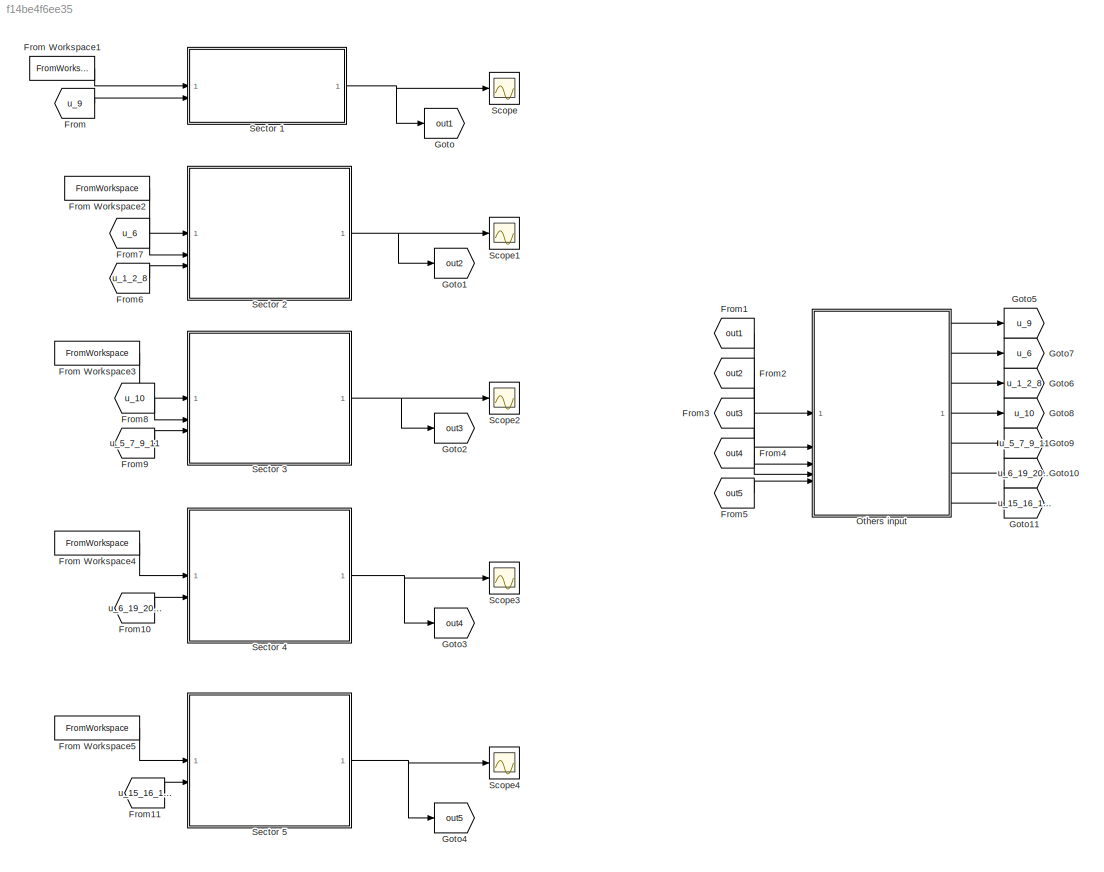
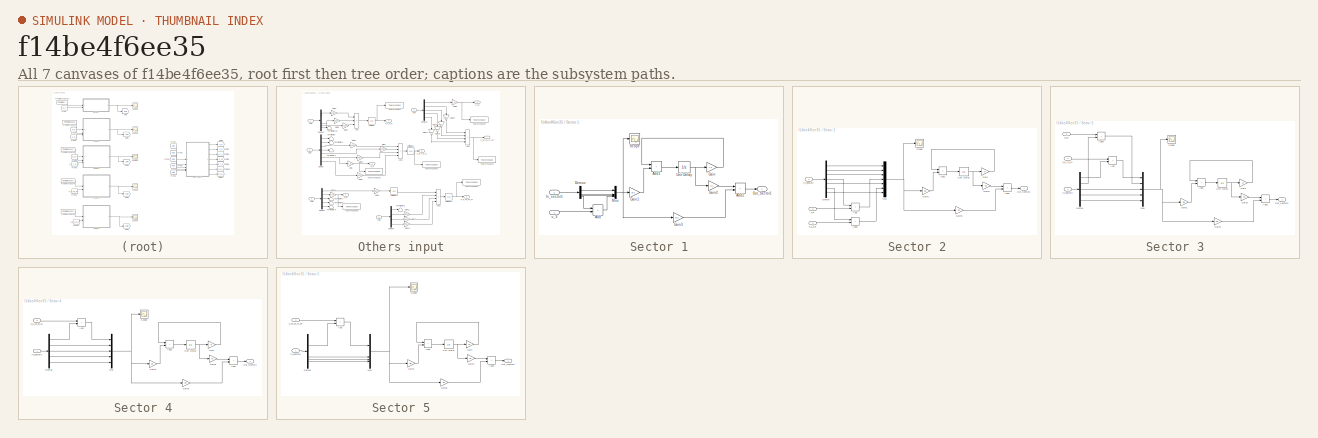
[diagram: thumbnail index - all 7 canvases of the model, root first then tree order]
MODEL slx_f14be4f6ee35
KIND model
CONFIG AbsTol = auto
CONFIG EnableMultiTasking = off
CONFIG FixedStep = auto
CONFIG MaxStep = auto
CONFIG MinStep = auto
CONFIG RelTol = 1e-3
CONFIG SampleTimeConstraint = Unconstrained
CONFIG SolverName = VariableStepAuto
CONFIG StartTime = 0.0
CONFIG StopTime = tfinal
BLOCK [From] From
  GotoTag = u_9
BLOCK [FromWorkspace] From Workspace1
  OutputAfterFinalValue = Holding final value
  SampleTime = 1
  VariableName = [t',u1',u2',u3',u_9']
BLOCK [FromWorkspace] From Workspace2
  OutputAfterFinalValue = Holding final value
  SampleTime = 1
  VariableName = [t',u3',u4',u5',u_6',u7',u_1_2_8',u11']
BLOCK [FromWorkspace] From Workspace3
  OutputAfterFinalValue = Holding final value
  SampleTime = 1
  VariableName = [t',u_5_7_9_11',u_10',u12',u13',u14']
BLOCK [FromWorkspace] From Workspace4
  OutputAfterFinalValue = Holding final value
  SampleTime = 1
  VariableName = [t',u_6_19_20_21',u15',u16',u17',u18']
BLOCK [FromWorkspace] From Workspace5
  OutputAfterFinalValue = Holding final value
  SampleTime = 1
  VariableName = [t',u_15_16_17_18',u19',u20',u21']
BLOCK [From] From1
  GotoTag = out1
BLOCK [From] From10
  GotoTag = u_6_19_20_21
BLOCK [From] From11
  GotoTag = u_15_16_17_18
BLOCK [From] From2
  GotoTag = out2
BLOCK [From] From3
  GotoTag = out3
BLOCK [From] From4
  GotoTag = out4
BLOCK [From] From5
  GotoTag = out5
BLOCK [From] From6
  GotoTag = u_1_2_8
BLOCK [From] From7
  GotoTag = u_6
BLOCK [From] From8
  GotoTag = u_10
BLOCK [From] From9
  GotoTag = u_5_7_9_11
BLOCK [Goto] Goto
  GotoTag = out1
BLOCK [Goto] Goto1
  GotoTag = out2
BLOCK [Goto] Goto10
  GotoTag = u_6_19_20_21
BLOCK [Goto] Goto11
  GotoTag = u_15_16_17_18
BLOCK [Goto] Goto2
  GotoTag = out3
BLOCK [Goto] Goto3
  GotoTag = out4
BLOCK [Goto] Goto4
  GotoTag = out5
BLOCK [Goto] Goto5
  GotoTag = u_9
BLOCK [Goto] Goto6
  GotoTag = u_1_2_8
BLOCK [Goto] Goto7
  GotoTag = u_6
BLOCK [Goto] Goto8
  GotoTag = u_10
BLOCK [Goto] Goto9
  GotoTag = u_5_7_9_11
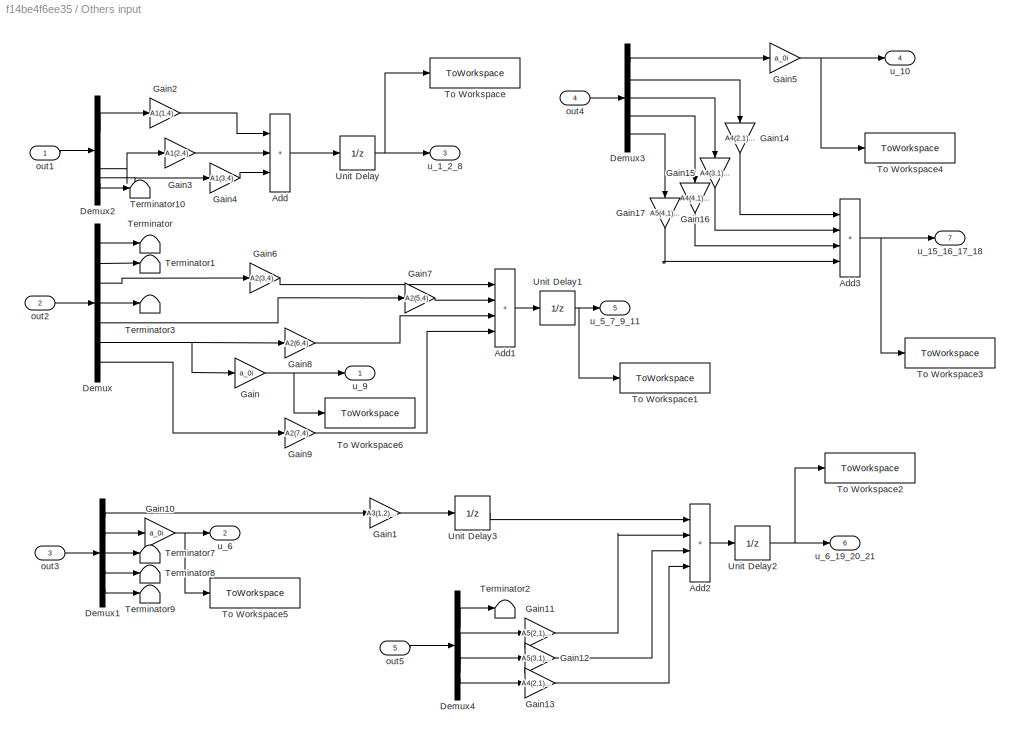
BLOCK [SubSystem] Others input
BLOCK [Sum] Others input/Add
  IconShape = rectangular
  Inputs = +++
BLOCK [Sum] Others input/Add1
  IconShape = rectangular
  Inputs = ++++
BLOCK [Sum] Others input/Add2
  IconShape = rectangular
  Inputs = ++++
BLOCK [Sum] Others input/Add3
  IconShape = rectangular
  Inputs = ++++
BLOCK [Demux] Others input/Demux
  Outputs = 7
BLOCK [Demux] Others input/Demux1
  Outputs = 5
BLOCK [Demux] Others input/Demux2
BLOCK [Demux] Others input/Demux3
  Outputs = 5
BLOCK [Demux] Others input/Demux4
BLOCK [Gain] Others input/Gain
  Gain = a_0i
BLOCK [Gain] Others input/Gain1
  Gain = A3(1,2)*a_0i
BLOCK [Gain] Others input/Gain10
  Gain = a_0i
BLOCK [Gain] Others input/Gain11
  Gain = A5(2,1)*a_0i
BLOCK [Gain] Others input/Gain12
  Gain = A5(3,1)*a_0i
BLOCK [Gain] Others input/Gain13
  Gain = A4(2,1)*a_0i
BLOCK [Gain] Others input/Gain14
  Gain = A4(2,1)*a_0i
  NameLocation = left
BLOCK [Gain] Others input/Gain15
  Gain = A4(3,1)*a_0i
  NameLocation = left
BLOCK [Gain] Others input/Gain16
  Gain = A4(4,1)*a_0i
  NameLocation = left
BLOCK [Gain] Others input/Gain17
  Gain = A5(4,1)*a_0i
  NameLocation = left
BLOCK [Gain] Others input/Gain2
  Gain = A1(1,4)
BLOCK [Gain] Others input/Gain3
  Gain = A1(2,4)
BLOCK [Gain] Others input/Gain4
  Gain = A1(3,4)
BLOCK [Gain] Others input/Gain5
  Gain = a_0i
BLOCK [Gain] Others input/Gain6
  Gain = A2(3,4)
BLOCK [Gain] Others input/Gain7
  Gain = A2(5,4)
BLOCK [Gain] Others input/Gain8
  Gain = A2(6,4)
BLOCK [Gain] Others input/Gain9
  Gain = A2(7,4)
BLOCK [Terminator] Others input/Terminator
BLOCK [Terminator] Others input/Terminator1
BLOCK [Terminator] Others input/Terminator10
BLOCK [Terminator] Others input/Terminator2
BLOCK [Terminator] Others input/Terminator3
BLOCK [Terminator] Others input/Terminator7
BLOCK [Terminator] Others input/Terminator8
BLOCK [Terminator] Others input/Terminator9
BLOCK [ToWorkspace] Others input/To Workspace
  FixptAsFi = on
  MaxDataPoints = inf
  SampleTime = -1
  VariableName = u_1_2_8
BLOCK [ToWorkspace] Others input/To Workspace1
  FixptAsFi = on
  MaxDataPoints = inf
  SampleTime = -1
  VariableName = u_5_7_9_11
BLOCK [ToWorkspace] Others input/To Workspace2
  FixptAsFi = on
  MaxDataPoints = inf
  SampleTime = -1
  VariableName = u_6_19_20_21
BLOCK [ToWorkspace] Others input/To Workspace3
  FixptAsFi = on
  MaxDataPoints = inf
  SampleTime = -1
  VariableName = u_15_16_17_18
BLOCK [ToWorkspace] Others input/To Workspace4
  FixptAsFi = on
  MaxDataPoints = inf
  SampleTime = -1
  VariableName = u_10
BLOCK [ToWorkspace] Others input/To Workspace5
  FixptAsFi = on
  MaxDataPoints = inf
  SampleTime = -1
  VariableName = u_6
BLOCK [ToWorkspace] Others input/To Workspace6
  FixptAsFi = on
  MaxDataPoints = inf
  SampleTime = -1
  VariableName = u_9
BLOCK [UnitDelay] Others input/Unit Delay
  HasFrameUpgradeWarning = on
  SampleTime = -1
BLOCK [UnitDelay] Others input/Unit Delay1
  HasFrameUpgradeWarning = on
  SampleTime = -1
BLOCK [UnitDelay] Others input/Unit Delay2
  HasFrameUpgradeWarning = on
  SampleTime = -1
BLOCK [UnitDelay] Others input/Unit Delay3
  HasFrameUpgradeWarning = on
  SampleTime = -1
BLOCK [Inport] Others input/out1
BLOCK [Inport] Others input/out2
  Port = 2
BLOCK [Inport] Others input/out3
  Port = 3
BLOCK [Inport] Others input/out4
  Port = 4
BLOCK [Inport] Others input/out5
  Port = 5
BLOCK [Outport] Others input/u_10
  Port = 4
BLOCK [Outport] Others input/u_15_16_17_18
  Port = 7
BLOCK [Outport] Others input/u_1_2_8
  Port = 3
BLOCK [Outport] Others input/u_5_7_9_11
  Port = 5
BLOCK [Outport] Others input/u_6
  Port = 2
BLOCK [Outport] Others input/u_6_19_20_21
  Port = 6
BLOCK [Outport] Others input/u_9
BLOCK [Scope] Scope
  Floating = off
  NumInputPorts = 1
  ScopeSpecificationString = Simulink.scopes.TimeScopeBlockCfg('CurrentConfiguration', extmgr.ConfigurationSet(extmgr.Configuration('Core','General UI',true),extmgr.Configuration('Core','Source UI',true),extmgr.Configuration('Sources','WiredSimulink',true,'DataLogging',true,'DataLoggingVariableName','outS1','DataLoggingSaveFormat','StructureWithTime'),extmgr.Configuration('Visuals','Time Domain',true,'SerializedDisplays',{str...<+1470ch>
BLOCK [Scope] Scope1
  Floating = off
  NumInputPorts = 1
  ScopeSpecificationString = Simulink.scopes.TimeScopeBlockCfg('CurrentConfiguration', extmgr.ConfigurationSet(extmgr.Configuration('Core','General UI',true),extmgr.Configuration('Core','Source UI',true),extmgr.Configuration('Sources','WiredSimulink',true,'DataLogging',true,'DataLoggingVariableName','outS2','DataLoggingSaveFormat','StructureWithTime'),extmgr.Configuration('Visuals','Time Domain',true,'SerializedDisplays',{str...<+1586ch>
BLOCK [Scope] Scope2
  Floating = off
  NumInputPorts = 1
  ScopeSpecificationString = Simulink.scopes.TimeScopeBlockCfg('CurrentConfiguration', extmgr.ConfigurationSet(extmgr.Configuration('Core','General UI',true),extmgr.Configuration('Core','Source UI',true),extmgr.Configuration('Sources','WiredSimulink',true,'DataLogging',true,'DataLoggingVariableName','outS3','DataLoggingSaveFormat','StructureWithTime'),extmgr.Configuration('Visuals','Time Domain',true,'SerializedDisplays',{str...<+1489ch>
BLOCK [Scope] Scope3
  Floating = off
  NumInputPorts = 1
  ScopeSpecificationString = Simulink.scopes.TimeScopeBlockCfg('CurrentConfiguration', extmgr.ConfigurationSet(extmgr.Configuration('Core','General UI',true),extmgr.Configuration('Core','Source UI',true),extmgr.Configuration('Sources','WiredSimulink',true,'DataLogging',true,'DataLoggingVariableName','outS4','DataLoggingSaveFormat','StructureWithTime'),extmgr.Configuration('Visuals','Time Domain',true,'SerializedDisplays',{str...<+1483ch>
BLOCK [Scope] Scope4
  Floating = off
  NumInputPorts = 1
  ScopeSpecificationString = Simulink.scopes.TimeScopeBlockCfg('CurrentConfiguration', extmgr.ConfigurationSet(extmgr.Configuration('Core','General UI',true),extmgr.Configuration('Core','Source UI',true),extmgr.Configuration('Sources','WiredSimulink',true,'DataLogging',true,'DataLoggingVariableName','outS5','DataLoggingSaveFormat','StructureWithTime'),extmgr.Configuration('Visuals','Time Domain',true,'SerializedDisplays',{str...<+1470ch>
BLOCK [SubSystem] Sector 1
BLOCK [Sum] Sector 1/Add
  IconShape = rectangular
BLOCK [Sum] Sector 1/Add1
  IconShape = rectangular
BLOCK [Sum] Sector 1/Add2
  IconShape = rectangular
BLOCK [Demux] Sector 1/Demux
BLOCK [Gain] Sector 1/Gain
  Gain = A1
  Multiplication = Matrix(K*u)
BLOCK [Gain] Sector 1/Gain1
  Gain = B1
  Multiplication = Matrix(K*u)
BLOCK [Gain] Sector 1/Gain2
  Gain = C1
  Multiplication = Matrix(K*u)
BLOCK [Gain] Sector 1/Gain3
  Gain = D1
  Multiplication = Matrix(K*u)
BLOCK [Inport] Sector 1/In_sector1
BLOCK [Mux] Sector 1/Mux
  DisplayOption = bar
BLOCK [Outport] Sector 1/Out_Sector1
BLOCK [Scope] Sector 1/Scope
  Floating = off
  NumInputPorts = 1
  ScopeSpecificationString = Simulink.scopes.TimeScopeBlockCfg('CurrentConfiguration', extmgr.ConfigurationSet(extmgr.Configuration('Core','General UI',true),extmgr.Configuration('Core','Source UI',true),extmgr.Configuration('Sources','WiredSimulink',true,'DataLogging',true,'DataLoggingVariableName','inS1','DataLoggingSaveFormat','StructureWithTime'),extmgr.Configuration('Visuals','Time Domain',true,'SerializedDisplays',{stru...<+1617ch>
BLOCK [UnitDelay] Sector 1/Unit Delay
  HasFrameUpgradeWarning = on
  SampleTime = -1
BLOCK [Inport] Sector 1/u_9
  Port = 2
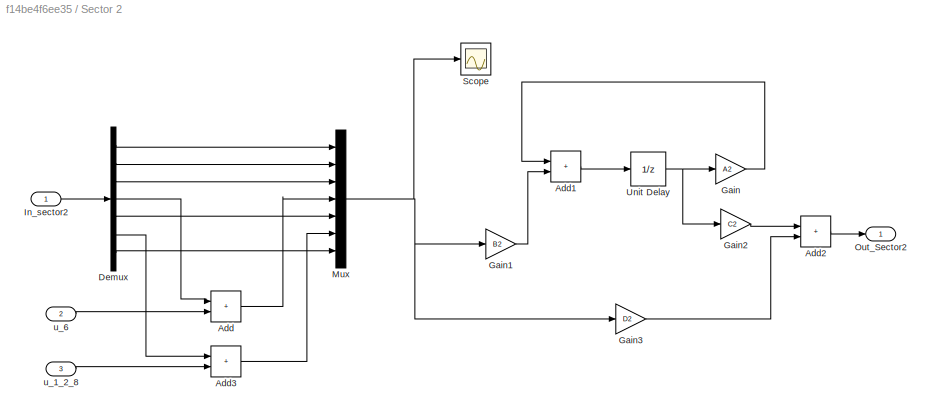
BLOCK [SubSystem] Sector 2
BLOCK [Sum] Sector 2/Add
  IconShape = rectangular
BLOCK [Sum] Sector 2/Add1
  IconShape = rectangular
BLOCK [Sum] Sector 2/Add2
  IconShape = rectangular
BLOCK [Sum] Sector 2/Add3
  IconShape = rectangular
BLOCK [Demux] Sector 2/Demux
  Outputs = 7
BLOCK [Gain] Sector 2/Gain
  Gain = A2
  Multiplication = Matrix(K*u)
BLOCK [Gain] Sector 2/Gain1
  Gain = B2
  Multiplication = Matrix(K*u)
BLOCK [Gain] Sector 2/Gain2
  Gain = C2
  Multiplication = Matrix(K*u)
BLOCK [Gain] Sector 2/Gain3
  Gain = D2
  Multiplication = Matrix(K*u)
BLOCK [Inport] Sector 2/In_sector2
BLOCK [Mux] Sector 2/Mux
  DisplayOption = bar
  Inputs = 7
BLOCK [Outport] Sector 2/Out_Sector2
BLOCK [Scope] Sector 2/Scope
  Floating = off
  NumInputPorts = 1
  ScopeSpecificationString = Simulink.scopes.TimeScopeBlockCfg('CurrentConfiguration', extmgr.ConfigurationSet(extmgr.Configuration('Core','General UI',true),extmgr.Configuration('Core','Source UI',true),extmgr.Configuration('Sources','WiredSimulink',true,'DataLogging',true,'DataLoggingVariableName','inS2','DataLoggingSaveFormat','StructureWithTime'),extmgr.Configuration('Visuals','Time Domain',true,'SerializedDisplays',{stru...<+1505ch>
BLOCK [UnitDelay] Sector 2/Unit Delay
  HasFrameUpgradeWarning = on
  SampleTime = -1
BLOCK [Inport] Sector 2/u_1_2_8
  Port = 3
BLOCK [Inport] Sector 2/u_6
  Port = 2
BLOCK [SubSystem] Sector 3
BLOCK [Sum] Sector 3/Add
  IconShape = rectangular
BLOCK [Sum] Sector 3/Add1
  IconShape = rectangular
BLOCK [Sum] Sector 3/Add2
  IconShape = rectangular
BLOCK [Sum] Sector 3/Add3
  IconShape = rectangular
BLOCK [Demux] Sector 3/Demux
  Outputs = 5
BLOCK [Gain] Sector 3/Gain
  Gain = A3
  Multiplication = Matrix(K*u)
BLOCK [Gain] Sector 3/Gain1
  Gain = B3
  Multiplication = Matrix(K*u)
BLOCK [Gain] Sector 3/Gain2
  Gain = C3
  Multiplication = Matrix(K*u)
BLOCK [Gain] Sector 3/Gain3
  Gain = D3
  Multiplication = Matrix(K*u)
BLOCK [Inport] Sector 3/In_sector3
BLOCK [Mux] Sector 3/Mux
  DisplayOption = bar
  Inputs = 5
BLOCK [Outport] Sector 3/Out_Sector3
BLOCK [Scope] Sector 3/Scope
  Floating = off
  NumInputPorts = 1
  ScopeSpecificationString = Simulink.scopes.TimeScopeBlockCfg('CurrentConfiguration', extmgr.ConfigurationSet(extmgr.Configuration('Core','General UI',true),extmgr.Configuration('Core','Source UI',true),extmgr.Configuration('Sources','WiredSimulink',true,'DataLogging',true,'DataLoggingVariableName','inS3','DataLoggingSaveFormat','StructureWithTime'),extmgr.Configuration('Visuals','Time Domain',true,'SerializedDisplays',{stru...<+1420ch>
BLOCK [UnitDelay] Sector 3/Unit Delay
  HasFrameUpgradeWarning = on
  SampleTime = -1
BLOCK [Inport] Sector 3/u_10
  Port = 2
BLOCK [Inport] Sector 3/u_5_7_9_11
  Port = 3
BLOCK [SubSystem] Sector 4
BLOCK [Sum] Sector 4/Add
  IconShape = rectangular
BLOCK [Sum] Sector 4/Add1
  IconShape = rectangular
BLOCK [Sum] Sector 4/Add2
  IconShape = rectangular
BLOCK [Demux] Sector 4/Demux
  Outputs = 5
BLOCK [Gain] Sector 4/Gain
  Gain = A4
  Multiplication = Matrix(K*u)
BLOCK [Gain] Sector 4/Gain1
  Gain = B4
  Multiplication = Matrix(K*u)
BLOCK [Gain] Sector 4/Gain2
  Gain = C4
  Multiplication = Matrix(K*u)
BLOCK [Gain] Sector 4/Gain3
  Gain = D4
  Multiplication = Matrix(K*u)
BLOCK [Inport] Sector 4/In_sector4
BLOCK [Mux] Sector 4/Mux
  DisplayOption = bar
  Inputs = 5
BLOCK [Outport] Sector 4/Out_Sector4
BLOCK [Scope] Sector 4/Scope
  Floating = off
  NumInputPorts = 1
  ScopeSpecificationString = Simulink.scopes.TimeScopeBlockCfg('CurrentConfiguration', extmgr.ConfigurationSet(extmgr.Configuration('Core','General UI',true),extmgr.Configuration('Core','Source UI',true),extmgr.Configuration('Sources','WiredSimulink',true,'DataLogging',true,'DataLoggingVariableName','inS4','DataLoggingSaveFormat','StructureWithTime'),extmgr.Configuration('Visuals','Time Domain',true,'SerializedDisplays',{stru...<+1420ch>
BLOCK [UnitDelay] Sector 4/Unit Delay
  HasFrameUpgradeWarning = on
  SampleTime = -1
BLOCK [Inport] Sector 4/u_6_19_20_21
  Port = 2
BLOCK [SubSystem] Sector 5
BLOCK [Sum] Sector 5/Add
  IconShape = rectangular
BLOCK [Sum] Sector 5/Add1
  IconShape = rectangular
BLOCK [Sum] Sector 5/Add2
  IconShape = rectangular
BLOCK [Demux] Sector 5/Demux
BLOCK [Gain] Sector 5/Gain
  Gain = A5
  Multiplication = Matrix(K*u)
BLOCK [Gain] Sector 5/Gain1
  Gain = B5
  Multiplication = Matrix(K*u)
BLOCK [Gain] Sector 5/Gain2
  Gain = C5
  Multiplication = Matrix(K*u)
BLOCK [Gain] Sector 5/Gain3
  Gain = D5
  Multiplication = Matrix(K*u)
BLOCK [Inport] Sector 5/In_sector5
BLOCK [Mux] Sector 5/Mux
  DisplayOption = bar
BLOCK [Outport] Sector 5/Out_Sector5
BLOCK [Scope] Sector 5/Scope
  Floating = off
  NumInputPorts = 1
  ScopeSpecificationString = Simulink.scopes.TimeScopeBlockCfg('CurrentConfiguration', extmgr.ConfigurationSet(extmgr.Configuration('Core','General UI',true),extmgr.Configuration('Core','Source UI',true),extmgr.Configuration('Sources','WiredSimulink',true,'DataLogging',true,'DataLoggingVariableName','inS5','DataLoggingSaveFormat','StructureWithTime'),extmgr.Configuration('Visuals','Time Domain',true,'SerializedDisplays',{stru...<+1420ch>
BLOCK [UnitDelay] Sector 5/Unit Delay
  HasFrameUpgradeWarning = on
  SampleTime = -1
BLOCK [Inport] Sector 5/u_15_16_17_18
  Port = 2
LINE From Workspace1:1 -> Sector 1:1
LINE From Workspace2:1 -> Sector 2:1
LINE From Workspace3:1 -> Sector 3:1
LINE From Workspace4:1 -> Sector 4:1
LINE From Workspace5:1 -> Sector 5:1
LINE From10:1 -> Sector 4:2
LINE From11:1 -> Sector 5:2
LINE From1:1 -> Others input:1
LINE From2:1 -> Others input:2
LINE From3:1 -> Others input:3
LINE From4:1 -> Others input:4
LINE From5:1 -> Others input:5
LINE From6:1 -> Sector 2:3
LINE From7:1 -> Sector 2:2
LINE From8:1 -> Sector 3:2
LINE From9:1 -> Sector 3:3
LINE From:1 -> Sector 1:2
LINE Others input/Add1:1 -> Others input/Unit Delay1:1
LINE Others input/Add2:1 -> Others input/Unit Delay2:1
NET Others input/Add3:1 -> Others input/To Workspace3:1, Others input/u_15_16_17_18:1
LINE Others input/Add:1 -> Others input/Unit Delay:1
LINE Others input/Demux1:1 -> Others input/Gain1:1
LINE Others input/Demux1:2 -> Others input/Gain10:1
LINE Others input/Demux1:3 -> Others input/Terminator7:1
LINE Others input/Demux1:4 -> Others input/Terminator8:1
LINE Others input/Demux1:5 -> Others input/Terminator9:1
LINE Others input/Demux2:1 -> Others input/Gain2:1
LINE Others input/Demux2:2 -> Others input/Gain3:1
LINE Others input/Demux2:3 -> Others input/Gain4:1
LINE Others input/Demux2:4 -> Others input/Terminator10:1
LINE Others input/Demux3:1 -> Others input/Gain5:1
LINE Others input/Demux3:2 -> Others input/Gain14:1
LINE Others input/Demux3:3 -> Others input/Gain15:1
LINE Others input/Demux3:4 -> Others input/Gain16:1
LINE Others input/Demux3:5 -> Others input/Gain17:1
LINE Others input/Demux4:1 -> Others input/Terminator2:1
LINE Others input/Demux4:2 -> Others input/Gain11:1
LINE Others input/Demux4:3 -> Others input/Gain12:1
LINE Others input/Demux4:4 -> Others input/Gain13:1
LINE Others input/Demux:1 -> Others input/Terminator:1
LINE Others input/Demux:2 -> Others input/Terminator1:1
LINE Others input/Demux:3 -> Others input/Gain6:1
LINE Others input/Demux:4 -> Others input/Terminator3:1
LINE Others input/Demux:5 -> Others input/Gain7:1
NET Others input/Demux:6 -> Others input/Gain8:1, Others input/Gain:1
LINE Others input/Demux:7 -> Others input/Gain9:1
NET Others input/Gain10:1 -> Others input/To Workspace5:1, Others input/u_6:1
LINE Others input/Gain11:1 -> Others input/Add2:2
LINE Others input/Gain12:1 -> Others input/Add2:3
LINE Others input/Gain13:1 -> Others input/Add2:4
LINE Others input/Gain14:1 -> Others input/Add3:1
LINE Others input/Gain15:1 -> Others input/Add3:2
LINE Others input/Gain16:1 -> Others input/Add3:3
LINE Others input/Gain17:1 -> Others input/Add3:4
LINE Others input/Gain1:1 -> Others input/Unit Delay3:1
LINE Others input/Gain2:1 -> Others input/Add:1
LINE Others input/Gain3:1 -> Others input/Add:2
LINE Others input/Gain4:1 -> Others input/Add:3
NET Others input/Gain5:1 -> Others input/To Workspace4:1, Others input/u_10:1
LINE Others input/Gain6:1 -> Others input/Add1:1
LINE Others input/Gain7:1 -> Others input/Add1:2
LINE Others input/Gain8:1 -> Others input/Add1:3
LINE Others input/Gain9:1 -> Others input/Add1:4
NET Others input/Gain:1 -> Others input/To Workspace6:1, Others input/u_9:1
NET Others input/Unit Delay1:1 -> Others input/To Workspace1:1, Others input/u_5_7_9_11:1
NET Others input/Unit Delay2:1 -> Others input/To Workspace2:1, Others input/u_6_19_20_21:1
LINE Others input/Unit Delay3:1 -> Others input/Add2:1
NET Others input/Unit Delay:1 -> Others input/To Workspace:1, Others input/u_1_2_8:1
LINE Others input/out1:1 -> Others input/Demux2:1
LINE Others input/out2:1 -> Others input/Demux:1
LINE Others input/out3:1 -> Others input/Demux1:1
LINE Others input/out4:1 -> Others input/Demux3:1
LINE Others input/out5:1 -> Others input/Demux4:1
LINE Others input:1 -> Goto5:1
LINE Others input:2 -> Goto7:1
LINE Others input:3 -> Goto6:1
LINE Others input:4 -> Goto8:1
LINE Others input:5 -> Goto9:1
LINE Others input:6 -> Goto10:1
LINE Others input:7 -> Goto11:1
LINE Sector 1/Add1:1 -> Sector 1/Unit Delay:1
LINE Sector 1/Add2:1 -> Sector 1/Out_Sector1:1
LINE Sector 1/Add:1 -> Sector 1/Mux:4
LINE Sector 1/Demux:1 -> Sector 1/Mux:1
LINE Sector 1/Demux:2 -> Sector 1/Mux:2
LINE Sector 1/Demux:3 -> Sector 1/Mux:3
LINE Sector 1/Demux:4 -> Sector 1/Add:1
LINE Sector 1/Gain1:1 -> Sector 1/Add1:2
LINE Sector 1/Gain2:1 -> Sector 1/Add2:1
LINE Sector 1/Gain3:1 -> Sector 1/Add2:2
LINE Sector 1/Gain:1 -> Sector 1/Add1:1
LINE Sector 1/In_sector1:1 -> Sector 1/Demux:1
NET Sector 1/Mux:1 -> Sector 1/Gain1:1, Sector 1/Gain3:1, Sector 1/Scope:1
NET Sector 1/Unit Delay:1 -> Sector 1/Gain2:1, Sector 1/Gain:1
LINE Sector 1/u_9:1 -> Sector 1/Add:2
NET Sector 1:1 -> Goto:1, Scope:1
LINE Sector 2/Add1:1 -> Sector 2/Unit Delay:1
LINE Sector 2/Add2:1 -> Sector 2/Out_Sector2:1
LINE Sector 2/Add3:1 -> Sector 2/Mux:6
LINE Sector 2/Add:1 -> Sector 2/Mux:4
LINE Sector 2/Demux:1 -> Sector 2/Mux:1
LINE Sector 2/Demux:2 -> Sector 2/Mux:2
LINE Sector 2/Demux:3 -> Sector 2/Mux:3
LINE Sector 2/Demux:4 -> Sector 2/Add:1
LINE Sector 2/Demux:5 -> Sector 2/Mux:5
LINE Sector 2/Demux:6 -> Sector 2/Add3:1
LINE Sector 2/Demux:7 -> Sector 2/Mux:7
LINE Sector 2/Gain1:1 -> Sector 2/Add1:2
LINE Sector 2/Gain2:1 -> Sector 2/Add2:1
LINE Sector 2/Gain3:1 -> Sector 2/Add2:2
LINE Sector 2/Gain:1 -> Sector 2/Add1:1
LINE Sector 2/In_sector2:1 -> Sector 2/Demux:1
NET Sector 2/Mux:1 -> Sector 2/Gain1:1, Sector 2/Gain3:1, Sector 2/Scope:1
NET Sector 2/Unit Delay:1 -> Sector 2/Gain2:1, Sector 2/Gain:1
LINE Sector 2/u_1_2_8:1 -> Sector 2/Add3:2
LINE Sector 2/u_6:1 -> Sector 2/Add:2
NET Sector 2:1 -> Goto1:1, Scope1:1
LINE Sector 3/Add1:1 -> Sector 3/Unit Delay:1
LINE Sector 3/Add2:1 -> Sector 3/Out_Sector3:1
LINE Sector 3/Add3:1 -> Sector 3/Mux:2
LINE Sector 3/Add:1 -> Sector 3/Mux:1
LINE Sector 3/Demux:1 -> Sector 3/Add:2
LINE Sector 3/Demux:2 -> Sector 3/Add3:2
LINE Sector 3/Demux:3 -> Sector 3/Mux:3
LINE Sector 3/Demux:4 -> Sector 3/Mux:4
LINE Sector 3/Demux:5 -> Sector 3/Mux:5
LINE Sector 3/Gain1:1 -> Sector 3/Add1:2
LINE Sector 3/Gain2:1 -> Sector 3/Add2:1
LINE Sector 3/Gain3:1 -> Sector 3/Add2:2
LINE Sector 3/Gain:1 -> Sector 3/Add1:1
LINE Sector 3/In_sector3:1 -> Sector 3/Demux:1
NET Sector 3/Mux:1 -> Sector 3/Gain1:1, Sector 3/Gain3:1, Sector 3/Scope:1
NET Sector 3/Unit Delay:1 -> Sector 3/Gain2:1, Sector 3/Gain:1
LINE Sector 3/u_10:1 -> Sector 3/Add3:1
LINE Sector 3/u_5_7_9_11:1 -> Sector 3/Add:1
NET Sector 3:1 -> Goto2:1, Scope2:1
LINE Sector 4/Add1:1 -> Sector 4/Unit Delay:1
LINE Sector 4/Add2:1 -> Sector 4/Out_Sector4:1
LINE Sector 4/Add:1 -> Sector 4/Mux:1
LINE Sector 4/Demux:1 -> Sector 4/Add:2
LINE Sector 4/Demux:2 -> Sector 4/Mux:2
LINE Sector 4/Demux:3 -> Sector 4/Mux:3
LINE Sector 4/Demux:4 -> Sector 4/Mux:4
LINE Sector 4/Demux:5 -> Sector 4/Mux:5
LINE Sector 4/Gain1:1 -> Sector 4/Add1:2
LINE Sector 4/Gain2:1 -> Sector 4/Add2:1
LINE Sector 4/Gain3:1 -> Sector 4/Add2:2
LINE Sector 4/Gain:1 -> Sector 4/Add1:1
LINE Sector 4/In_sector4:1 -> Sector 4/Demux:1
NET Sector 4/Mux:1 -> Sector 4/Gain1:1, Sector 4/Gain3:1, Sector 4/Scope:1
NET Sector 4/Unit Delay:1 -> Sector 4/Gain2:1, Sector 4/Gain:1
LINE Sector 4/u_6_19_20_21:1 -> Sector 4/Add:1
NET Sector 4:1 -> Goto3:1, Scope3:1
LINE Sector 5/Add1:1 -> Sector 5/Unit Delay:1
LINE Sector 5/Add2:1 -> Sector 5/Out_Sector5:1
LINE Sector 5/Add:1 -> Sector 5/Mux:1
LINE Sector 5/Demux:1 -> Sector 5/Add:2
LINE Sector 5/Demux:2 -> Sector 5/Mux:2
LINE Sector 5/Demux:3 -> Sector 5/Mux:3
LINE Sector 5/Demux:4 -> Sector 5/Mux:4
LINE Sector 5/Gain1:1 -> Sector 5/Add1:2
LINE Sector 5/Gain2:1 -> Sector 5/Add2:1
LINE Sector 5/Gain3:1 -> Sector 5/Add2:2
LINE Sector 5/Gain:1 -> Sector 5/Add1:1
LINE Sector 5/In_sector5:1 -> Sector 5/Demux:1
NET Sector 5/Mux:1 -> Sector 5/Gain1:1, Sector 5/Gain3:1, Sector 5/Scope:1
NET Sector 5/Unit Delay:1 -> Sector 5/Gain2:1, Sector 5/Gain:1
LINE Sector 5/u_15_16_17_18:1 -> Sector 5/Add:1
NET Sector 5:1 -> Goto4:1, Scope4:1
note: NET lines group one-source signal fan-out (src -> all destinations, sorted); 1:1 wires keep LINE
